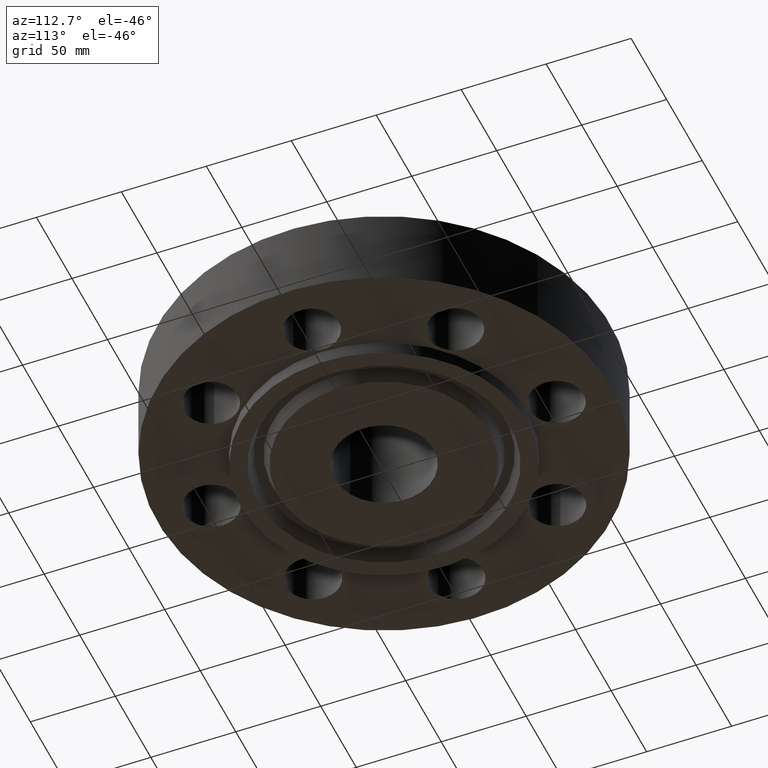
[diagram: clean part render]
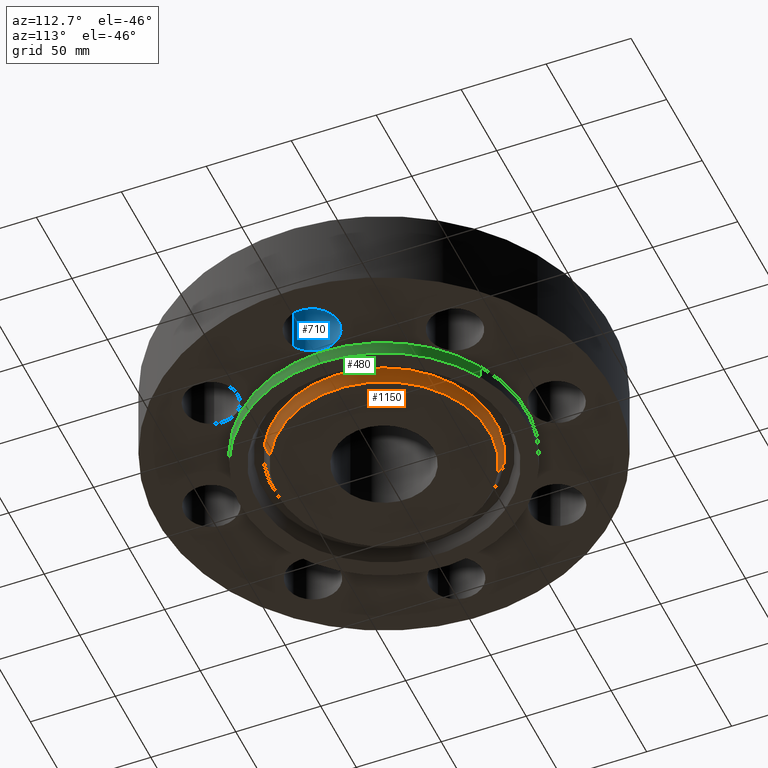
[diagram: same view with three faces highlighted in distinct colors, each labeled with its STEP entity id]
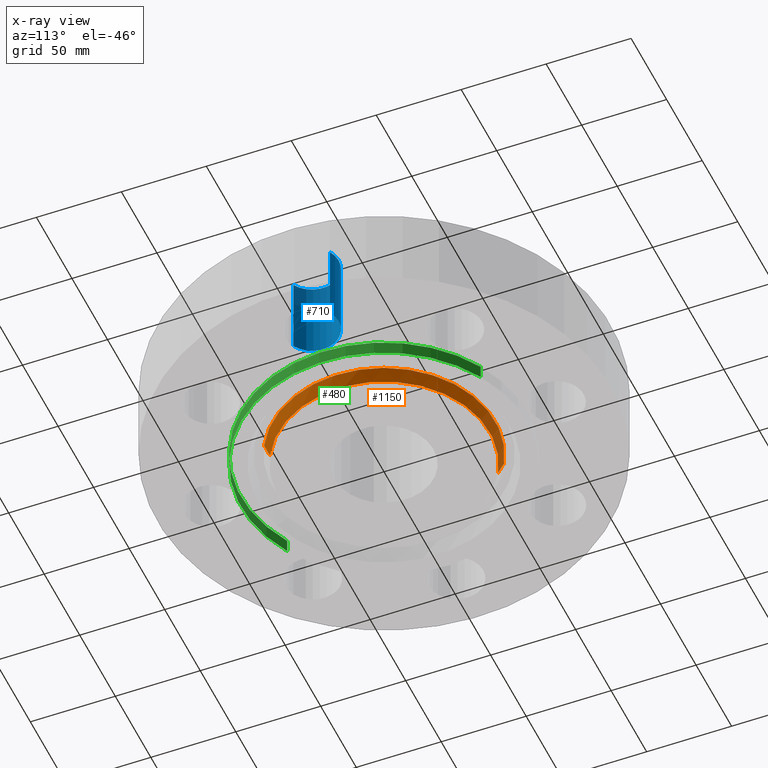
[diagram: x-ray of the same camera — body ghosted, the three highlighted faces saturated]
A machine part, auxiliary view with three faces highlighted in distinct colors.
The next image is the same camera in x-ray (body ghosted, the three faces saturated) — at least one of them is partly hidden behind the body in this view.
Their STEP definitions:

[orange] entity #1150 — the highlighted conical surface has half-angle 23 deg.
#956=AXIS2_PLACEMENT_3D('Circle Axis2P3D',#954,#955,$) ;
#1100=AXIS2_PLACEMENT_3D('Circle Axis2P3D',#1098,#1099,$) ;
#1132=AXIS2_PLACEMENT_3D('Cone Axis2P3D',#1129,#1130,#1131) ;
#954=CARTESIAN_POINT('Axis2P3D Location',(0.,1.39870617276E-016,-0.313000000001)) ;
#958=CARTESIAN_POINT('Vertex',(-1.1760308462,2.15271002433,-0.313000000001)) ;
#960=CARTESIAN_POINT('Vertex',(1.1760308462,-2.15271002433,-0.313000000001)) ;
#1095=CARTESIAN_POINT('Vertex',(1.23588396979,-2.26227043217,-0.0188873350169)) ;
#1098=CARTESIAN_POINT('Axis2P3D Location',(0.,0.,-0.0188873350169)) ;
#1102=CARTESIAN_POINT('Vertex',(-1.23588396979,2.26227043217,-0.0188873350169)) ;
#1129=CARTESIAN_POINT('Axis2P3D Location',(0.,0.,-0.373000000001)) ;
#1134=CARTESIAN_POINT('Line Origine',(-1.205957408,2.20749022825,-0.165943667509)) ;
#1139=CARTESIAN_POINT('Line Origine',(1.205957408,-2.20749022825,-0.165943667509)) ;
#955=DIRECTION('Axis2P3D Direction',(0.,0.,-0.0393700787402)) ;
#1099=DIRECTION('Axis2P3D Direction',(0.,0.,0.0393700787402)) ;
#1130=DIRECTION('Axis2P3D Direction',(0.,0.,0.0393700787402)) ;
#1131=DIRECTION('Axis2P3D XDirection',(-0.0188750212049,0.0345504945626,0.)) ;
#1135=DIRECTION('Vector Direction',(-0.00737505833565,0.0134999537303,0.0362403485611)) ;
#1140=DIRECTION('Vector Direction',(0.00737505833565,-0.0134999537303,0.0362403485611)) ;
#1136=VECTOR('Line Direction',#1135,0.0393700787402) ;
#1141=VECTOR('Line Direction',#1140,0.0393700787402) ;
#1145=ORIENTED_EDGE('',*,*,#1138,.F.) ;
#1146=ORIENTED_EDGE('',*,*,#1104,.F.) ;
#1147=ORIENTED_EDGE('',*,*,#1143,.T.) ;
#1148=ORIENTED_EDGE('',*,*,#962,.F.) ;
#1150=ADVANCED_FACE('PartBody',(#1149),#1133,.T.) ;
#957=CIRCLE('generated circle',#956,2.45300000001) ;
#1101=CIRCLE('generated circle',#1100,2.57784341942) ;
#1133=CONICAL_SURFACE('Cone',#1132,2.42753151104,0.401425727959) ;
#962=EDGE_CURVE('',#959,#961,#957,.T.) ;
#1104=EDGE_CURVE('',#1096,#1103,#1101,.T.) ;
#1138=EDGE_CURVE('',#1103,#959,#1137,.F.) ;
#1143=EDGE_CURVE('',#1096,#961,#1142,.F.) ;
#1144=EDGE_LOOP('',(#1145,#1146,#1147,#1148)) ;
#1149=FACE_OUTER_BOUND('',#1144,.T.) ;
#1137=LINE('Line',#1134,#1136) ;
#1142=LINE('Line',#1139,#1141) ;
#959=VERTEX_POINT('',#958) ;
#961=VERTEX_POINT('',#960) ;
#1096=VERTEX_POINT('',#1095) ;
#1103=VERTEX_POINT('',#1102) ;

[blue] entity #710 — the highlighted cylindrical surface (edge-blend (fillet) strip) has radius 15.875 mm, axis along (0, -0, -1).
#527=AXIS2_PLACEMENT_3D('Circle Axis2P3D',#525,#526,$) ;
#671=AXIS2_PLACEMENT_3D('Cylinder Axis2P3D',#668,#669,#670) ;
#701=AXIS2_PLACEMENT_3D('Circle Axis2P3D',#699,#700,$) ;
#520=CARTESIAN_POINT('Vertex',(4.29964096164,0.548489101184,0.)) ;
#522=CARTESIAN_POINT('Vertex',(3.70035903839,-0.548489101184,0.)) ;
#525=CARTESIAN_POINT('Axis2P3D Location',(4.00000000002,5.59482469102E-016,0.)) ;
#668=CARTESIAN_POINT('Axis2P3D Location',(4.00000000002,2.4492935983E-016,1.87606299213)) ;
#673=CARTESIAN_POINT('Line Origine',(4.29964096164,0.548489101184,0.940000000004)) ;
#677=CARTESIAN_POINT('Vertex',(4.29964096164,0.548489101184,1.88000000001)) ;
#680=CARTESIAN_POINT('Line Origine',(3.70035903839,-0.548489101184,0.940000000004)) ;
#684=CARTESIAN_POINT('Vertex',(3.70035903839,-0.548489101184,1.88000000001)) ;
#699=CARTESIAN_POINT('Axis2P3D Location',(4.00000000002,2.4492935983E-016,1.88000000001)) ;
#526=DIRECTION('Axis2P3D Direction',(0.,0.,-0.0393700787402)) ;
#669=DIRECTION('Axis2P3D Direction',(0.,-0.,-0.0393700787402)) ;
#670=DIRECTION('Axis2P3D XDirection',(-0.0188750212049,-0.0345504945626,0.)) ;
#674=DIRECTION('Vector Direction',(0.,0.,-0.0393700787402)) ;
#681=DIRECTION('Vector Direction',(0.,0.,-0.0393700787402)) ;
#700=DIRECTION('Axis2P3D Direction',(0.,-0.,-0.0393700787402)) ;
#675=VECTOR('Line Direction',#674,0.0393700787402) ;
#682=VECTOR('Line Direction',#681,0.0393700787402) ;
#705=ORIENTED_EDGE('',*,*,#686,.F.) ;
#706=ORIENTED_EDGE('',*,*,#529,.T.) ;
#707=ORIENTED_EDGE('',*,*,#679,.T.) ;
#708=ORIENTED_EDGE('',*,*,#703,.F.) ;
#710=ADVANCED_FACE('PartBody',(#709),#672,.F.) ;
#528=CIRCLE('generated circle',#527,0.625000000003) ;
#702=CIRCLE('generated circle',#701,0.625000000003) ;
#672=CYLINDRICAL_SURFACE('generated cylinder',#671,0.625000000003) ;
#529=EDGE_CURVE('',#523,#521,#528,.T.) ;
#679=EDGE_CURVE('',#521,#678,#676,.F.) ;
#686=EDGE_CURVE('',#523,#685,#683,.F.) ;
#703=EDGE_CURVE('',#685,#678,#702,.T.) ;
#704=EDGE_LOOP('',(#705,#706,#707,#708)) ;
#709=FACE_OUTER_BOUND('',#704,.T.) ;
#676=LINE('Line',#673,#675) ;
#683=LINE('Line',#680,#682) ;
#521=VERTEX_POINT('',#520) ;
#523=VERTEX_POINT('',#522) ;
#678=VERTEX_POINT('',#677) ;
#685=VERTEX_POINT('',#684) ;

[green] entity #480 — the highlighted cylindrical surface (partial cylindrical patch) has radius 84.1375 mm, axis along (0, 0, -1).
#427=AXIS2_PLACEMENT_3D('Cylinder Axis2P3D',#424,#425,#426) ;
#466=AXIS2_PLACEMENT_3D('Circle Axis2P3D',#464,#465,$) ;
#471=AXIS2_PLACEMENT_3D('Circle Axis2P3D',#469,#470,$) ;
#424=CARTESIAN_POINT('Axis2P3D Location',(0.,0.,2.15350000001)) ;
#433=CARTESIAN_POINT('Vertex',(-1.58809709663,-2.90699223627,-0.313000000001)) ;
#435=CARTESIAN_POINT('Vertex',(1.58809709663,2.90699223627,-0.313000000001)) ;
#438=CARTESIAN_POINT('Line Origine',(-1.58809709663,-2.90699223627,-0.156500000001)) ;
#442=CARTESIAN_POINT('Vertex',(-1.58809709663,-2.90699223627,0.)) ;
#449=CARTESIAN_POINT('Vertex',(1.58809709663,2.90699223627,0.)) ;
#452=CARTESIAN_POINT('Line Origine',(1.58809709663,2.90699223627,-0.156500000001)) ;
#464=CARTESIAN_POINT('Axis2P3D Location',(0.,0.,-0.313000000001)) ;
#469=CARTESIAN_POINT('Axis2P3D Location',(0.,0.,2.79741234551E-016)) ;
#425=DIRECTION('Axis2P3D Direction',(0.,0.,-0.0393700787402)) ;
#426=DIRECTION('Axis2P3D XDirection',(0.0188750212049,0.0345504945626,0.)) ;
#439=DIRECTION('Vector Direction',(0.,0.,-0.0393700787402)) ;
#453=DIRECTION('Vector Direction',(0.,0.,-0.0393700787402)) ;
#465=DIRECTION('Axis2P3D Direction',(0.,0.,-0.0393700787402)) ;
#470=DIRECTION('Axis2P3D Direction',(0.,0.,-0.0393700787402)) ;
#440=VECTOR('Line Direction',#439,0.0393700787402) ;
#454=VECTOR('Line Direction',#453,0.0393700787402) ;
#475=ORIENTED_EDGE('',*,*,#468,.F.) ;
#476=ORIENTED_EDGE('',*,*,#456,.T.) ;
#477=ORIENTED_EDGE('',*,*,#473,.T.) ;
#478=ORIENTED_EDGE('',*,*,#444,.F.) ;
#480=ADVANCED_FACE('PartBody',(#479),#428,.T.) ;
#467=CIRCLE('generated circle',#466,3.31250000001) ;
#472=CIRCLE('generated circle',#471,3.31250000001) ;
#428=CYLINDRICAL_SURFACE('generated cylinder',#427,3.31250000001) ;
#444=EDGE_CURVE('',#434,#443,#441,.F.) ;
#456=EDGE_CURVE('',#436,#450,#455,.F.) ;
#468=EDGE_CURVE('',#436,#434,#467,.T.) ;
#473=EDGE_CURVE('',#450,#443,#472,.T.) ;
#474=EDGE_LOOP('',(#475,#476,#477,#478)) ;
#479=FACE_OUTER_BOUND('',#474,.T.) ;
#441=LINE('Line',#438,#440) ;
#455=LINE('Line',#452,#454) ;
#434=VERTEX_POINT('',#433) ;
#436=VERTEX_POINT('',#435) ;
#443=VERTEX_POINT('',#442) ;
#450=VERTEX_POINT('',#449) ;